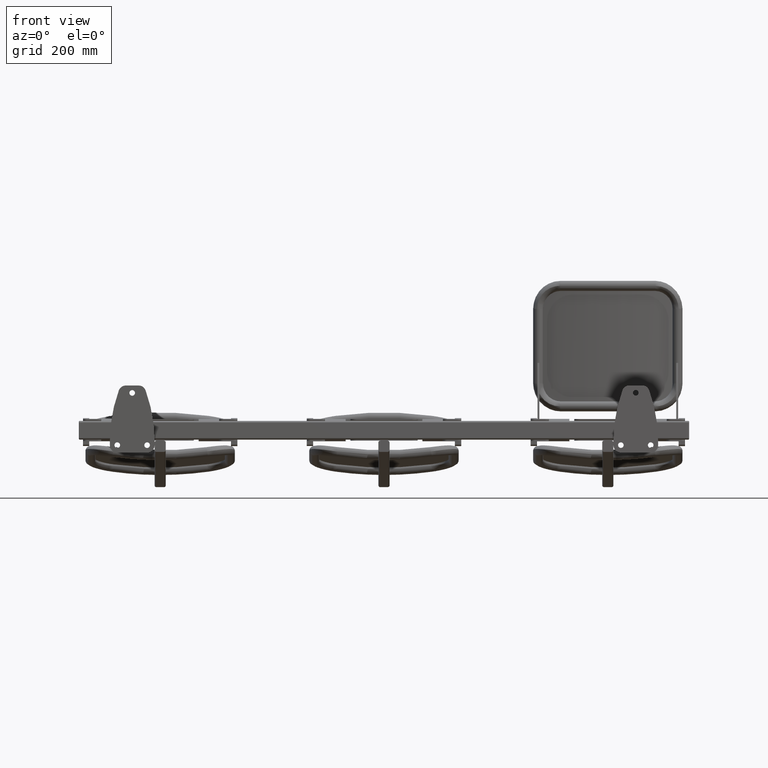
[diagram: clean part render]
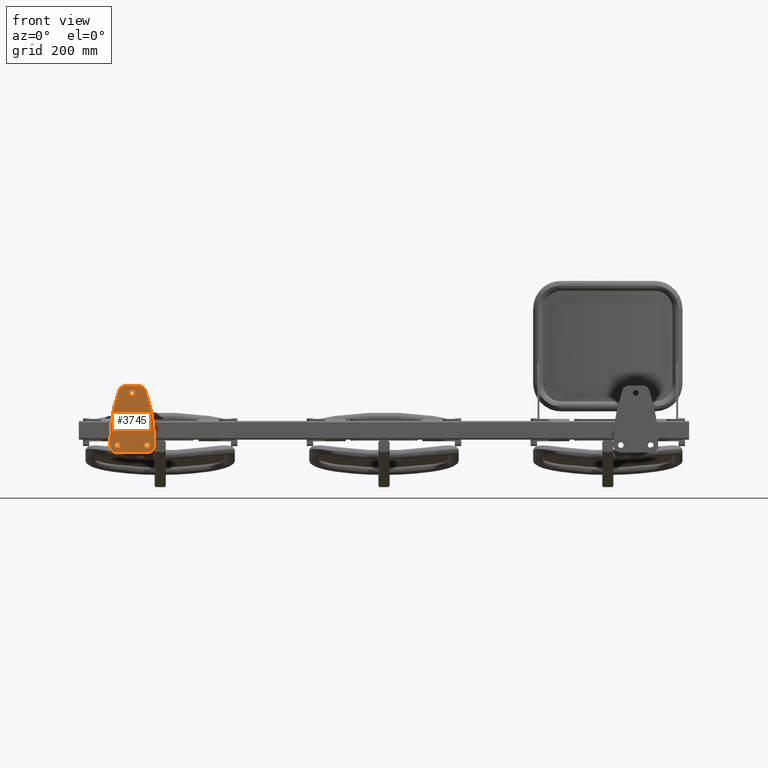
[diagram: same view with one face highlighted and labeled with its STEP entity id]
A machine part, front view. The second image highlights one B-rep face of the part: STEP entity #3745.
In plain terms, the highlighted planar face has unit normal (0, -1, 0).
Its self-contained STEP definition (entity closure, byte-faithful):
#1087 = CARTESIAN_POINT ( 'NONE',  ( -675.0000000000000000, 0.0000000000000000000, 100.0000000000000000 ) ) ;
#1088 = DIRECTION ( 'NONE',  ( -0.0000000000000000000, -1.000000000000000000, -0.0000000000000000000 ) ) ;
#1089 = DIRECTION ( 'NONE',  ( 0.0000000000000000000, 0.0000000000000000000, -1.000000000000000000 ) ) ;
#1587 = CARTESIAN_POINT ( 'NONE',  ( -635.0000000000000000, 0.0000000000000000000, -40.00000000000000700 ) ) ;
#1588 = DIRECTION ( 'NONE',  ( -0.0000000000000000000, -1.000000000000000000, -0.0000000000000000000 ) ) ;
#1589 = DIRECTION ( 'NONE',  ( 0.0000000000000000000, 0.0000000000000000000, -1.000000000000000000 ) ) ;
#1597 = CARTESIAN_POINT ( 'NONE',  ( -715.0000000000001100, 0.0000000000000000000, -39.99999999999999300 ) ) ;
#1598 = DIRECTION ( 'NONE',  ( -0.0000000000000000000, -1.000000000000000000, -0.0000000000000000000 ) ) ;
#1599 = DIRECTION ( 'NONE',  ( 0.0000000000000000000, 0.0000000000000000000, -1.000000000000000000 ) ) ;
#2889 = VERTEX_POINT ( 'NONE', #13490 ) ;
#2898 = VERTEX_POINT ( 'NONE', #13496 ) ;
#2901 = VERTEX_POINT ( 'NONE', #13498 ) ;
#2902 = VERTEX_POINT ( 'NONE', #13499 ) ;
#2905 = VERTEX_POINT ( 'NONE', #13502 ) ;
#3745 = ADVANCED_FACE ( 'NONE', ( #8253, #8257, #8248, #8250 ), #6157, .T. ) ;
#4478 = ORIENTED_EDGE ( 'NONE', *, *, #15101, .F. ) ;
#4479 = ORIENTED_EDGE ( 'NONE', *, *, #12177, .F. ) ;
#4480 = ORIENTED_EDGE ( 'NONE', *, *, #15151, .F. ) ;
#4481 = ORIENTED_EDGE ( 'NONE', *, *, #12178, .F. ) ;
#4482 = ORIENTED_EDGE ( 'NONE', *, *, #15155, .F. ) ;
#4483 = ORIENTED_EDGE ( 'NONE', *, *, #12179, .F. ) ;
#4484 = ORIENTED_EDGE ( 'NONE', *, *, #12180, .F. ) ;
#4485 = ORIENTED_EDGE ( 'NONE', *, *, #12181, .T. ) ;
#4486 = ORIENTED_EDGE ( 'NONE', *, *, #12440, .F. ) ;
#4487 = ORIENTED_EDGE ( 'NONE', *, *, #12182, .T. ) ;
#4488 = ORIENTED_EDGE ( 'NONE', *, *, #12183, .F. ) ;
#4489 = ORIENTED_EDGE ( 'NONE', *, *, #12418, .F. ) ;
#4490 = ORIENTED_EDGE ( 'NONE', *, *, #12184, .T. ) ;
#4491 = ORIENTED_EDGE ( 'NONE', *, *, #12175, .F. ) ;
#4492 = ORIENTED_EDGE ( 'NONE', *, *, #12185, .T. ) ;
#4493 = ORIENTED_EDGE ( 'NONE', *, *, #12443, .F. ) ;
#4939 = CARTESIAN_POINT ( 'NONE',  ( -639.1353458661657200, 0.0000000000000000000, 106.8421052631579200 ) ) ;
#4941 = CARTESIAN_POINT ( 'NONE',  ( -635.0000000000000000, 0.0000000000000000000, -60.00000000000001400 ) ) ;
#4943 = CARTESIAN_POINT ( 'NONE',  ( -615.0000000000000000, 0.0000000000000000000, -39.99999999999995000 ) ) ;
#4948 = CARTESIAN_POINT ( 'NONE',  ( -715.0000000000001100, 0.0000000000000000000, -60.00000000000001400 ) ) ;
#4950 = CARTESIAN_POINT ( 'NONE',  ( -614.9999999999998900, 0.0000000000000000000, -30.00000000000001400 ) ) ;
#4977 = CARTESIAN_POINT ( 'NONE',  ( -710.8646541338343900, 0.0000000000000000000, 106.8421052631578900 ) ) ;
#4978 = CARTESIAN_POINT ( 'NONE',  ( -657.9285785728574200, 0.0000000000000000000, 120.0000000000000000 ) ) ;
#4998 = CARTESIAN_POINT ( 'NONE',  ( -735.0000000000001100, 0.0000000000000000000, -39.99999999999992200 ) ) ;
#5010 = CARTESIAN_POINT ( 'NONE',  ( -635.0000000000000000, 0.0000000000000000000, -47.50000000000007800 ) ) ;
#5014 = CARTESIAN_POINT ( 'NONE',  ( -675.0000000000000000, 0.0000000000000000000, 107.5000000000000900 ) ) ;
#5022 = CARTESIAN_POINT ( 'NONE',  ( -635.0000000000000000, 0.0000000000000000000, -32.49999999999993600 ) ) ;
#5251 = LINE ( 'NONE', #5894, #5262 ) ;
#5262 = VECTOR ( 'NONE', #5902, 1000.000000000000000 ) ;
#5319 = LINE ( 'NONE', #5952, #5322 ) ;
#5322 = VECTOR ( 'NONE', #5953, 1000.000000000000000 ) ;
#5326 = LINE ( 'NONE', #5966, #5333 ) ;
#5333 = VECTOR ( 'NONE', #5967, 1000.000000000000000 ) ;
#5894 = CARTESIAN_POINT ( 'NONE',  ( -735.0000000000000000, 0.0000000000000000000, 120.0000000000000000 ) ) ;
#5902 = DIRECTION ( 'NONE',  ( 6.167905692361981500E-016, -0.0000000000000000000, 1.000000000000000000 ) ) ;
#5952 = CARTESIAN_POINT ( 'NONE',  ( -615.0000000000000000, 0.0000000000000000000, 120.0000000000000000 ) ) ;
#5953 = DIRECTION ( 'NONE',  ( 1.000000000000000000, -0.0000000000000000000, -0.0000000000000000000 ) ) ;
#5966 = CARTESIAN_POINT ( 'NONE',  ( -615.0000000000000000, 0.0000000000000000000, 120.0000000000000000 ) ) ;
#5967 = DIRECTION ( 'NONE',  ( 0.0000000000000000000, 0.0000000000000000000, -1.000000000000000000 ) ) ;
#6156 = DIRECTION ( 'NONE',  ( 0.0000000000000000000, -1.000000000000000000, -0.0000000000000000000 ) ) ;
#6157 = PLANE ( 'NONE',  #15282 ) ;
#6159 = CARTESIAN_POINT ( 'NONE',  ( -615.0000000000000000, 0.0000000000000000000, 120.0000000000000000 ) ) ;
#6161 = DIRECTION ( 'NONE',  ( 0.0000000000000000000, 0.0000000000000000000, -1.000000000000000000 ) ) ;
#6753 = CARTESIAN_POINT ( 'NONE',  ( -615.0000000000000000, 0.0000000000000000000, -60.00000000000001400 ) ) ;
#6759 = DIRECTION ( 'NONE',  ( -1.000000000000000000, 0.0000000000000000000, 0.0000000000000000000 ) ) ;
#6762 = CARTESIAN_POINT ( 'NONE',  ( -675.0000000000000000, 0.0000000000000000000, 100.0000000000000000 ) ) ;
#6763 = DIRECTION ( 'NONE',  ( -0.0000000000000000000, -1.000000000000000000, -0.0000000000000000000 ) ) ;
#6764 = DIRECTION ( 'NONE',  ( 0.0000000000000000000, 0.0000000000000000000, -1.000000000000000000 ) ) ;
#6765 = CARTESIAN_POINT ( 'NONE',  ( -635.0000000000000000, 0.0000000000000000000, -40.00000000000000700 ) ) ;
#6766 = DIRECTION ( 'NONE',  ( -0.0000000000000000000, -1.000000000000000000, -0.0000000000000000000 ) ) ;
#6767 = DIRECTION ( 'NONE',  ( 0.0000000000000000000, 0.0000000000000000000, -1.000000000000000000 ) ) ;
#6768 = CARTESIAN_POINT ( 'NONE',  ( -715.0000000000001100, 0.0000000000000000000, -39.99999999999999300 ) ) ;
#6769 = DIRECTION ( 'NONE',  ( -0.0000000000000000000, -1.000000000000000000, -0.0000000000000000000 ) ) ;
#6770 = DIRECTION ( 'NONE',  ( 0.0000000000000000000, 0.0000000000000000000, -1.000000000000000000 ) ) ;
#6771 = CARTESIAN_POINT ( 'NONE',  ( -1014.999999999999900, 0.0000000000000000000, -30.00000000000001800 ) ) ;
#6772 = DIRECTION ( 'NONE',  ( 0.0000000000000000000, 1.000000000000000000, 0.0000000000000000000 ) ) ;
#6773 = DIRECTION ( 'NONE',  ( 2.775557561562891400E-015, 0.0000000000000000000, -1.000000000000000000 ) ) ;
#6774 = CARTESIAN_POINT ( 'NONE',  ( -657.9285785728574200, 0.0000000000000000000, 99.99999999999998600 ) ) ;
#6775 = DIRECTION ( 'NONE',  ( -0.0000000000000000000, -1.000000000000000000, -0.0000000000000000000 ) ) ;
#6776 = DIRECTION ( 'NONE',  ( 0.0000000000000000000, 0.0000000000000000000, -1.000000000000000000 ) ) ;
#6777 = CARTESIAN_POINT ( 'NONE',  ( -692.0714214271425800, 0.0000000000000000000, 99.99999999999998600 ) ) ;
#6778 = DIRECTION ( 'NONE',  ( -0.0000000000000000000, -1.000000000000000000, -0.0000000000000000000 ) ) ;
#6779 = DIRECTION ( 'NONE',  ( 0.0000000000000000000, 0.0000000000000000000, -1.000000000000000000 ) ) ;
#6780 = CARTESIAN_POINT ( 'NONE',  ( -335.0000000000000600, 0.0000000000000000000, -30.00000000000001400 ) ) ;
#6781 = DIRECTION ( 'NONE',  ( 0.0000000000000000000, 1.000000000000000000, 0.0000000000000000000 ) ) ;
#6782 = DIRECTION ( 'NONE',  ( 0.0000000000000000000, 0.0000000000000000000, -1.000000000000000000 ) ) ;
#6783 = CARTESIAN_POINT ( 'NONE',  ( -715.0000000000001100, 0.0000000000000000000, -39.99999999999999300 ) ) ;
#6784 = DIRECTION ( 'NONE',  ( -0.0000000000000000000, -1.000000000000000000, -0.0000000000000000000 ) ) ;
#6785 = DIRECTION ( 'NONE',  ( 0.0000000000000000000, 0.0000000000000000000, -1.000000000000000000 ) ) ;
#6787 = CARTESIAN_POINT ( 'NONE',  ( -635.0000000000000000, 0.0000000000000000000, -40.00000000000000700 ) ) ;
#6788 = DIRECTION ( 'NONE',  ( -0.0000000000000000000, -1.000000000000000000, -0.0000000000000000000 ) ) ;
#6789 = DIRECTION ( 'NONE',  ( 0.0000000000000000000, 0.0000000000000000000, -1.000000000000000000 ) ) ;
#8248 = FACE_BOUND ( 'NONE', #13132, .T. ) ;
#8250 = FACE_OUTER_BOUND ( 'NONE', #12704, .T. ) ;
#8253 = FACE_BOUND ( 'NONE', #12672, .T. ) ;
#8257 = FACE_BOUND ( 'NONE', #13113, .T. ) ;
#11590 = CIRCLE ( 'NONE', #13760, 7.500000000000076400 ) ;
#11635 = CIRCLE ( 'NONE', #14842, 7.500000000000069300 ) ;
#11641 = CIRCLE ( 'NONE', #14844, 7.500000000000069300 ) ;
#12175 = EDGE_CURVE ( 'NONE', #14356, #14370, #13339, .T. ) ;
#12177 = EDGE_CURVE ( 'NONE', #2889, #14597, #13347, .T. ) ;
#12178 = EDGE_CURVE ( 'NONE', #14593, #14605, #13343, .T. ) ;
#12179 = EDGE_CURVE ( 'NONE', #2902, #2905, #13349, .T. ) ;
#12180 = EDGE_CURVE ( 'NONE', #14352, #14374, #13350, .T. ) ;
#12181 = EDGE_CURVE ( 'NONE', #14352, #14429, #13352, .T. ) ;
#12182 = EDGE_CURVE ( 'NONE', #2898, #14427, #13351, .T. ) ;
#12183 = EDGE_CURVE ( 'NONE', #2901, #14427, #13354, .T. ) ;
#12184 = EDGE_CURVE ( 'NONE', #14581, #14370, #13355, .T. ) ;
#12185 = EDGE_CURVE ( 'NONE', #14356, #14360, #13356, .T. ) ;
#12418 = EDGE_CURVE ( 'NONE', #14581, #2901, #5251, .T. ) ;
#12440 = EDGE_CURVE ( 'NONE', #2898, #14429, #5319, .T. ) ;
#12443 = EDGE_CURVE ( 'NONE', #14374, #14360, #5326, .T. ) ;
#12672 = EDGE_LOOP ( 'NONE', ( #4478, #4479 ) ) ;
#12704 = EDGE_LOOP ( 'NONE', ( #4484, #4485, #4486, #4487, #4488, #4489, #4490, #4491, #4492, #4493 ) ) ;
#13113 = EDGE_LOOP ( 'NONE', ( #4480, #4481 ) ) ;
#13132 = EDGE_LOOP ( 'NONE', ( #4482, #4483 ) ) ;
#13339 = LINE ( 'NONE', #6753, #13346 ) ;
#13343 = CIRCLE ( 'NONE', #13642, 7.500000000000069300 ) ;
#13346 = VECTOR ( 'NONE', #6759, 1000.000000000000000 ) ;
#13347 = CIRCLE ( 'NONE', #13641, 7.500000000000076400 ) ;
#13349 = CIRCLE ( 'NONE', #13643, 7.500000000000069300 ) ;
#13350 = CIRCLE ( 'NONE', #13644, 400.0000000000000000 ) ;
#13351 = CIRCLE ( 'NONE', #13646, 20.00000000000000400 ) ;
#13352 = CIRCLE ( 'NONE', #13645, 20.00000000000000400 ) ;
#13354 = CIRCLE ( 'NONE', #13647, 400.0000000000000000 ) ;
#13355 = CIRCLE ( 'NONE', #13648, 20.00000000000000400 ) ;
#13356 = CIRCLE ( 'NONE', #13649, 20.00000000000000400 ) ;
#13490 = CARTESIAN_POINT ( 'NONE',  ( -675.0000000000000000, 0.0000000000000000000, 92.49999999999992900 ) ) ;
#13496 = CARTESIAN_POINT ( 'NONE',  ( -692.0714214271425800, 0.0000000000000000000, 120.0000000000000000 ) ) ;
#13498 = CARTESIAN_POINT ( 'NONE',  ( -735.0000000000001100, 0.0000000000000000000, -29.99999999999997200 ) ) ;
#13499 = CARTESIAN_POINT ( 'NONE',  ( -715.0000000000001100, 0.0000000000000000000, -47.50000000000006400 ) ) ;
#13502 = CARTESIAN_POINT ( 'NONE',  ( -715.0000000000001100, 0.0000000000000000000, -32.49999999999992200 ) ) ;
#13641 = AXIS2_PLACEMENT_3D ( 'NONE', #6762, #6763, #6764 ) ;
#13642 = AXIS2_PLACEMENT_3D ( 'NONE', #6765, #6766, #6767 ) ;
#13643 = AXIS2_PLACEMENT_3D ( 'NONE', #6768, #6769, #6770 ) ;
#13644 = AXIS2_PLACEMENT_3D ( 'NONE', #6771, #6772, #6773 ) ;
#13645 = AXIS2_PLACEMENT_3D ( 'NONE', #6774, #6775, #6776 ) ;
#13646 = AXIS2_PLACEMENT_3D ( 'NONE', #6777, #6778, #6779 ) ;
#13647 = AXIS2_PLACEMENT_3D ( 'NONE', #6780, #6781, #6782 ) ;
#13648 = AXIS2_PLACEMENT_3D ( 'NONE', #6783, #6784, #6785 ) ;
#13649 = AXIS2_PLACEMENT_3D ( 'NONE', #6787, #6788, #6789 ) ;
#13760 = AXIS2_PLACEMENT_3D ( 'NONE', #1087, #1088, #1089 ) ;
#14352 = VERTEX_POINT ( 'NONE', #4939 ) ;
#14356 = VERTEX_POINT ( 'NONE', #4941 ) ;
#14360 = VERTEX_POINT ( 'NONE', #4943 ) ;
#14370 = VERTEX_POINT ( 'NONE', #4948 ) ;
#14374 = VERTEX_POINT ( 'NONE', #4950 ) ;
#14427 = VERTEX_POINT ( 'NONE', #4977 ) ;
#14429 = VERTEX_POINT ( 'NONE', #4978 ) ;
#14581 = VERTEX_POINT ( 'NONE', #4998 ) ;
#14593 = VERTEX_POINT ( 'NONE', #5010 ) ;
#14597 = VERTEX_POINT ( 'NONE', #5014 ) ;
#14605 = VERTEX_POINT ( 'NONE', #5022 ) ;
#14842 = AXIS2_PLACEMENT_3D ( 'NONE', #1587, #1588, #1589 ) ;
#14844 = AXIS2_PLACEMENT_3D ( 'NONE', #1597, #1598, #1599 ) ;
#15101 = EDGE_CURVE ( 'NONE', #14597, #2889, #11590, .T. ) ;
#15151 = EDGE_CURVE ( 'NONE', #14605, #14593, #11635, .T. ) ;
#15155 = EDGE_CURVE ( 'NONE', #2905, #2902, #11641, .T. ) ;
#15282 = AXIS2_PLACEMENT_3D ( 'NONE', #6159, #6156, #6161 ) ;